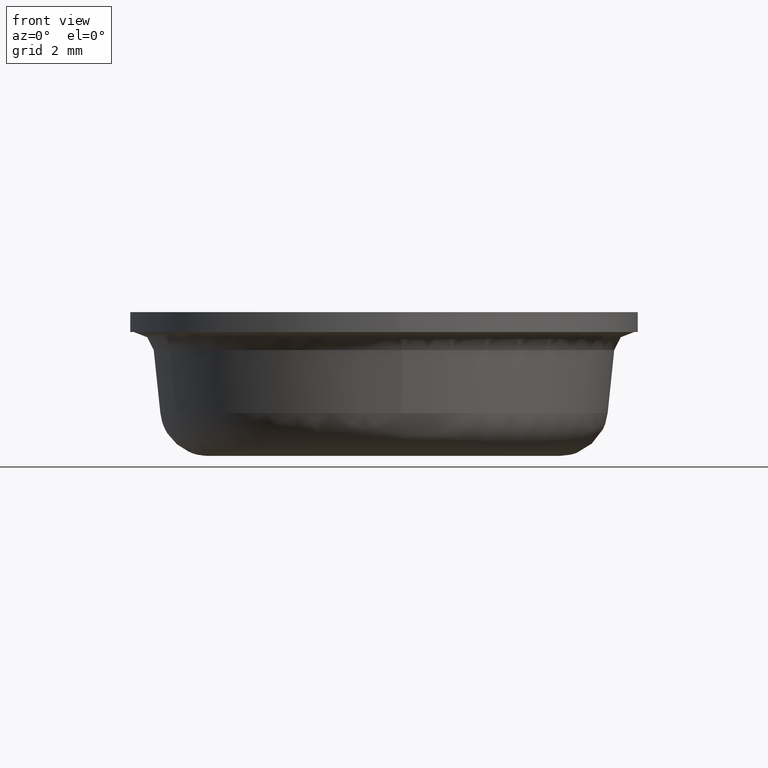
[diagram: clean part render]
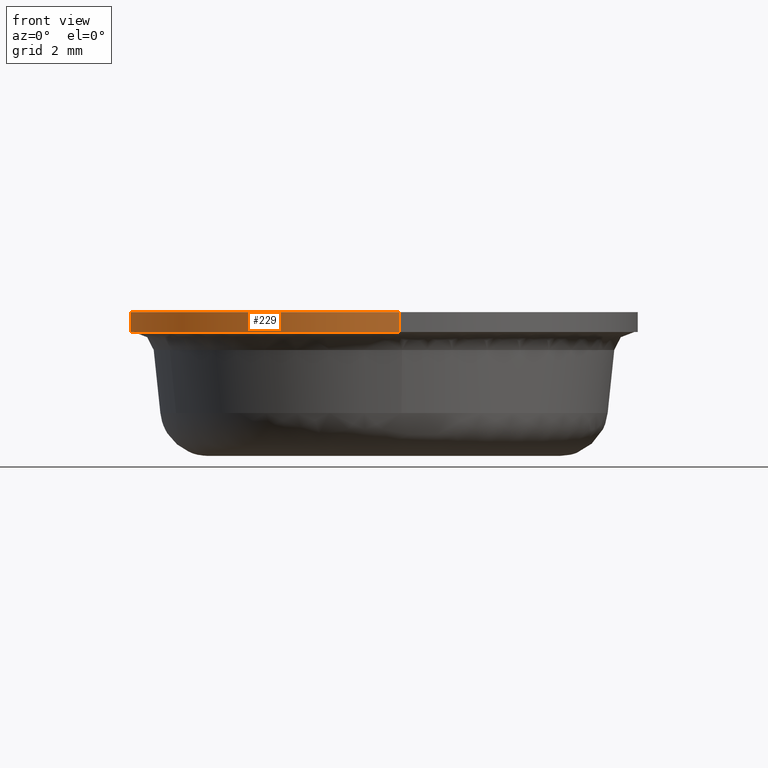
[diagram: same view with one face highlighted and labeled with its STEP entity id]
A machine part, front view. The second image highlights one B-rep face of the part: STEP entity #229.
In plain terms, the highlighted face is a freeform B-spline surface patch.
Its self-contained STEP definition (entity closure, byte-faithful):
#66=CARTESIAN_POINT('',(-0.749513375861459,6.305610969556273,3.599999999999921));
#67=VERTEX_POINT('',#66);
#85=CARTESIAN_POINT('',(0.387655958614094,-6.338156108660137,3.599999999999948));
#86=VERTEX_POINT('',#85);
#100=CARTESIAN_POINT('',(0.387655985912206,-6.338156106990533,3.100000000000000));
#101=VERTEX_POINT('',#100);
#102=CARTESIAN_POINT('',(0.387655958614094,-6.338156108660137,3.599999999999948));
#103=CARTESIAN_POINT('',(0.387655985912206,-6.338156106990533,3.100000000000000));
#104=QUASI_UNIFORM_CURVE('',1,(#102,#103),.UNSPECIFIED.,.F.,.U.);
#105=EDGE_CURVE('',#86,#101,#104,.T.);
#122=CARTESIAN_POINT('',(-0.749513424211019,6.305610963809257,3.100000000000000));
#123=VERTEX_POINT('',#122);
#139=CARTESIAN_POINT('',(-0.749513375861459,6.305610969556273,3.599999999999921));
#140=CARTESIAN_POINT('',(-0.749513424211019,6.305610963809257,3.100000000000000));
#141=QUASI_UNIFORM_CURVE('',1,(#139,#140),.UNSPECIFIED.,.F.,.U.);
#142=EDGE_CURVE('',#67,#123,#141,.T.);
#147=CARTESIAN_POINT('',(0.387658226046342,-6.338155969978853,3.612500000000001));
#148=CARTESIAN_POINT('',(-5.950497743932512,-6.725814196025195,3.612500000000002));
#149=CARTESIAN_POINT('',(-6.338155969978853,-0.387658226046342,3.612500000000001));
#150=CARTESIAN_POINT('',(-6.704242349251549,5.597801166830830,3.612500000000002));
#151=CARTESIAN_POINT('',(-0.749517390070416,6.305610492409281,3.612500000000001));
#152=CARTESIAN_POINT('',(0.387658226046342,-6.338155969978853,3.087187500000000));
#153=CARTESIAN_POINT('',(-5.950497743932512,-6.725814196025195,3.087187500000000));
#154=CARTESIAN_POINT('',(-6.338155969978853,-0.387658226046342,3.087187500000000));
#155=CARTESIAN_POINT('',(-6.704242349251549,5.597801166830830,3.087187500000000));
#156=CARTESIAN_POINT('',(-0.749517390070416,6.305610492409281,3.087187500000001));
#164=(BOUNDED_SURFACE()B_SPLINE_SURFACE(2,1,((#147,#152),(#148,#153),(#149,#154),(#150,#155),(#151,#156)),.UNSPECIFIED.,.F.,.F.,.U.)B_SPLINE_SURFACE_WITH_KNOTS((3,2,3),(2,2),(0.0,10.521024484276611,20.621207989182160),(0.0,1.0),.UNSPECIFIED.)GEOMETRIC_REPRESENTATION_ITEM()RATIONAL_B_SPLINE_SURFACE(((1.0,1.0),(0.707106781186548,0.707106781186548),(1.0,1.0),(0.718822509939086,0.718822509939086),(0.977505800795127,0.977505800795127)))REPRESENTATION_ITEM('')SURFACE());
#165=CARTESIAN_POINT('',(-6.350000000000000,0.0,3.600000000000000));
#166=VERTEX_POINT('',#165);
#167=CARTESIAN_POINT('',(-6.350000000000000,0.0,3.600000000000000));
#168=CARTESIAN_POINT('',(-6.350000000000001,5.639911855484185,3.599999999999999));
#169=CARTESIAN_POINT('',(-0.749513375861459,6.305610969556273,3.599999999999921));
#177=(BOUNDED_CURVE()B_SPLINE_CURVE(2,(#167,#168,#169),.UNSPECIFIED.,.F.,.U.)B_SPLINE_CURVE_WITH_KNOTS((3,3),(0.0,0.229562581104653),.UNSPECIFIED.)CURVE()GEOMETRIC_REPRESENTATION_ITEM()RATIONAL_B_SPLINE_CURVE((1.0,0.731050706804535,0.956026965066855))REPRESENTATION_ITEM(''));
#178=EDGE_CURVE('',#166,#67,#177,.T.);
#179=ORIENTED_EDGE('',*,*,#178,.T.);
#180=ORIENTED_EDGE('',*,*,#142,.T.);
#181=CARTESIAN_POINT('',(-6.350000000000000,0.0,3.100000000000000));
#182=VERTEX_POINT('',#181);
#183=CARTESIAN_POINT('',(-6.350000000000000,0.0,3.100000000000000));
#184=CARTESIAN_POINT('',(-6.350000000000001,5.639911811934584,3.100000000000000));
#185=CARTESIAN_POINT('',(-0.749513424211019,6.305610963809257,3.100000000000000));
#193=(BOUNDED_CURVE()B_SPLINE_CURVE(2,(#183,#184,#185),.UNSPECIFIED.,.F.,.U.)B_SPLINE_CURVE_WITH_KNOTS((3,3),(0.0,0.229562579808786),.UNSPECIFIED.)CURVE()GEOMETRIC_REPRESENTATION_ITEM()RATIONAL_B_SPLINE_CURVE((1.0,0.731050708322738,0.956026962526900))REPRESENTATION_ITEM(''));
#194=EDGE_CURVE('',#182,#123,#193,.T.);
#195=ORIENTED_EDGE('',*,*,#194,.F.);
#196=CARTESIAN_POINT('',(0.387655985912206,-6.338156106990533,3.100000000000000));
#197=CARTESIAN_POINT('',(0.194008923738444,-6.350000000000000,3.100000000000001));
#198=CARTESIAN_POINT('',(0.0,-6.350000000000000,3.100000000000000));
#199=CARTESIAN_POINT('',(-6.350000000000000,-6.350000000000000,3.100000000000000));
#200=CARTESIAN_POINT('',(-6.350000000000000,0.0,3.100000000000000));
#208=(BOUNDED_CURVE()B_SPLINE_CURVE(2,(#196,#197,#198,#199,#200),.UNSPECIFIED.,.F.,.U.)B_SPLINE_CURVE_WITH_KNOTS((3,2,3),(0.739333023226263,0.750000000000000,1.0),.UNSPECIFIED.)CURVE()GEOMETRIC_REPRESENTATION_ITEM()RATIONAL_B_SPLINE_CURVE((0.976072172374189,0.987502859350927,1.0,0.707106781186547,1.0))REPRESENTATION_ITEM(''));
#209=EDGE_CURVE('',#101,#182,#208,.T.);
#210=ORIENTED_EDGE('',*,*,#209,.F.);
#211=ORIENTED_EDGE('',*,*,#105,.F.);
#212=CARTESIAN_POINT('',(0.387655958614094,-6.338156108660137,3.599999999999948));
#213=CARTESIAN_POINT('',(0.194008910051117,-6.350000000000001,3.600000000000000));
#214=CARTESIAN_POINT('',(0.0,-6.350000000000000,3.600000000000000));
#215=CARTESIAN_POINT('',(-6.350000000000000,-6.350000000000000,3.600000000000000));
#216=CARTESIAN_POINT('',(-6.350000000000000,0.0,3.600000000000000));
#224=(BOUNDED_CURVE()B_SPLINE_CURVE(2,(#212,#213,#214,#215,#216),.UNSPECIFIED.,.F.,.U.)B_SPLINE_CURVE_WITH_KNOTS((3,2,3),(0.739333023969413,0.750000000000000,1.0),.UNSPECIFIED.)CURVE()GEOMETRIC_REPRESENTATION_ITEM()RATIONAL_B_SPLINE_CURVE((0.976072173966902,0.987502860221582,1.0,0.707106781186547,1.0))REPRESENTATION_ITEM(''));
#225=EDGE_CURVE('',#86,#166,#224,.T.);
#226=ORIENTED_EDGE('',*,*,#225,.T.);
#227=EDGE_LOOP('',(#179,#180,#195,#210,#211,#226));
#228=FACE_OUTER_BOUND('',#227,.T.);
#229=ADVANCED_FACE('',(#228),#164,.T.);